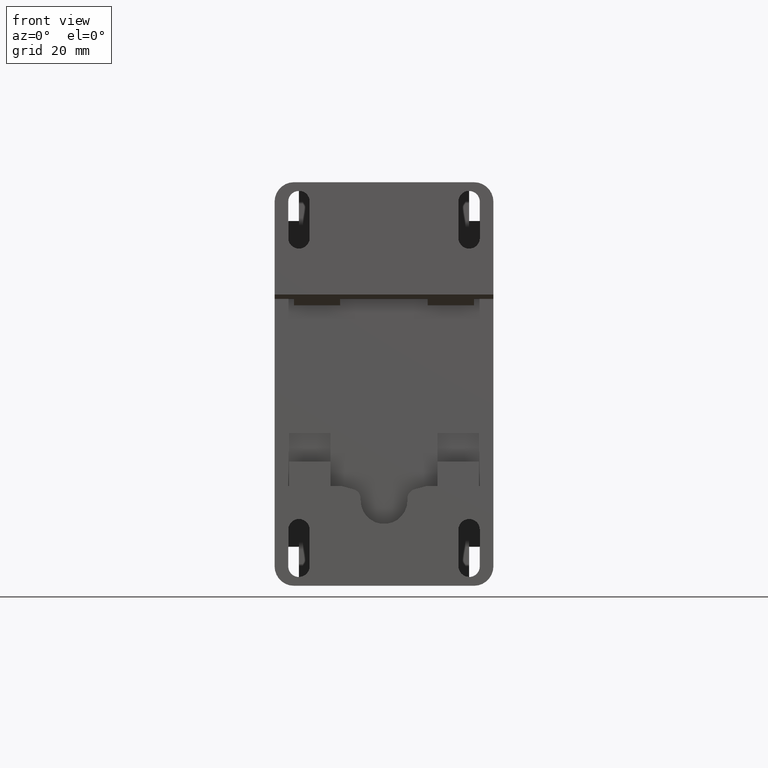
[diagram: clean part render]
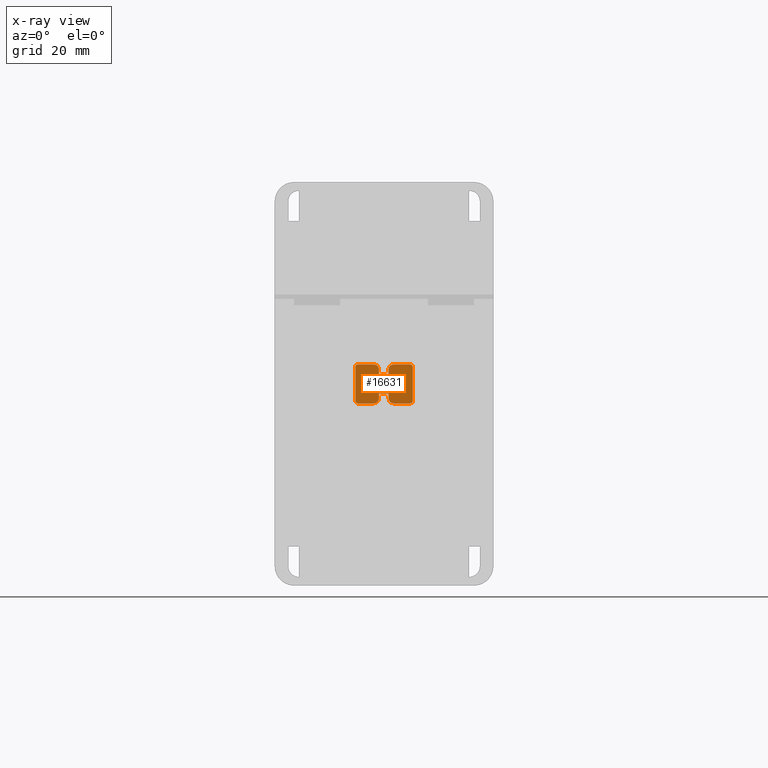
[diagram: x-ray — body ghosted, one internal face saturated and labeled with its STEP entity id]
A machine part, front view, then the same camera in x-ray: the body is ghosted and one INTERNAL B-rep face — a face not visible from any outside direction — is saturated and labeled: STEP entity #16631.
In plain terms, the highlighted planar face has unit normal (-0, 1, 0).
Its self-contained STEP definition (entity closure, byte-faithful):
#1 = EDGE_CURVE ( 'NONE', #4164, #13453, #15109, .T. ) ;
#185 = VERTEX_POINT ( 'NONE', #29516 ) ;
#217 = AXIS2_PLACEMENT_3D ( 'NONE', #1769, #26879, #7391 ) ;
#283 = VECTOR ( 'NONE', #25731, 39.37007874015748143 ) ;
#403 = LINE ( 'NONE', #24613, #12937 ) ;
#469 = LINE ( 'NONE', #30631, #3771 ) ;
#897 = VERTEX_POINT ( 'NONE', #8086 ) ;
#961 = EDGE_CURVE ( 'NONE', #3439, #897, #10978, .T. ) ;
#995 = VECTOR ( 'NONE', #27521, 39.37007874015748143 ) ;
#1147 = DIRECTION ( 'NONE',  ( 1.000000000000000000, 0.000000000000000000, 0.000000000000000000 ) ) ;
#1382 = CARTESIAN_POINT ( 'NONE',  ( 0.2322834645669291376, 1.251968503937008093, -0.1377952755905511861 ) ) ;
#1495 = PLANE ( 'NONE',  #7338 ) ;
#1602 = ORIENTED_EDGE ( 'NONE', *, *, #5576, .F. ) ;
#1686 = CARTESIAN_POINT ( 'NONE',  ( 0.03740157480314960925, 1.251968503937008093, 0.07874015748031495954 ) ) ;
#1769 = CARTESIAN_POINT ( 'NONE',  ( 0.07677165354330708902, 1.251968503937008093, -0.1181102362204724532 ) ) ;
#1783 = DIRECTION ( 'NONE',  ( 0.000000000000000000, 0.000000000000000000, 1.000000000000000000 ) ) ;
#2207 = VERTEX_POINT ( 'NONE', #31108 ) ;
#2614 = ORIENTED_EDGE ( 'NONE', *, *, #17056, .F. ) ;
#2628 = VECTOR ( 'NONE', #1783, 39.37007874015748143 ) ;
#2693 = DIRECTION ( 'NONE',  ( 0.000000000000000000, -1.000000000000000000, 0.000000000000000000 ) ) ;
#2944 = LINE ( 'NONE', #22101, #995 ) ;
#3117 = CARTESIAN_POINT ( 'NONE',  ( 0.03740157480314960925, 1.251968503937008093, -0.07874015748031495954 ) ) ;
#3439 = VERTEX_POINT ( 'NONE', #15922 ) ;
#3771 = VECTOR ( 'NONE', #16737, 39.37007874015748143 ) ;
#4157 = CARTESIAN_POINT ( 'NONE',  ( 0.2125984251968504046, 1.251968503937008093, 0.1377952755905511861 ) ) ;
#4164 = VERTEX_POINT ( 'NONE', #31373 ) ;
#4189 = CARTESIAN_POINT ( 'NONE',  ( 0.07677165354330708902, 1.251968503937008093, -0.1574803149606299191 ) ) ;
#4336 = CIRCLE ( 'NONE', #7804, 0.01968503937007873988 ) ;
#4458 = DIRECTION ( 'NONE',  ( 0.000000000000000000, 0.000000000000000000, 1.000000000000000000 ) ) ;
#4560 = ORIENTED_EDGE ( 'NONE', *, *, #1, .T. ) ;
#4664 = EDGE_CURVE ( 'NONE', #11172, #22011, #8688, .T. ) ;
#4980 = CARTESIAN_POINT ( 'NONE',  ( -0.2322834645669291376, 1.251968503937008093, -0.1574803149606299191 ) ) ;
#5048 = DIRECTION ( 'NONE',  ( 0.000000000000000000, -1.000000000000000000, 0.000000000000000000 ) ) ;
#5311 = EDGE_CURVE ( 'NONE', #2207, #185, #29714, .T. ) ;
#5405 = CARTESIAN_POINT ( 'NONE',  ( -0.08070866141732284393, 1.251968503937008093, -0.1181102362204724532 ) ) ;
#5576 = EDGE_CURVE ( 'NONE', #8663, #30420, #20680, .T. ) ;
#5665 = DIRECTION ( 'NONE',  ( 0.000000000000000000, 0.000000000000000000, 1.000000000000000000 ) ) ;
#5830 = LINE ( 'NONE', #3117, #30268 ) ;
#5998 = DIRECTION ( 'NONE',  ( 0.000000000000000000, 0.000000000000000000, 1.000000000000000000 ) ) ;
#6522 = VECTOR ( 'NONE', #14948, 39.37007874015748143 ) ;
#6802 = CARTESIAN_POINT ( 'NONE',  ( 0.8228346456692913202, 1.251968503937008093, -0.1574803149606299191 ) ) ;
#7338 = AXIS2_PLACEMENT_3D ( 'NONE', #12545, #20480, #20996 ) ;
#7391 = DIRECTION ( 'NONE',  ( 0.000000000000000000, 0.000000000000000000, 1.000000000000000000 ) ) ;
#7401 = DIRECTION ( 'NONE',  ( 0.000000000000000000, -1.000000000000000000, 0.000000000000000000 ) ) ;
#7804 = AXIS2_PLACEMENT_3D ( 'NONE', #26696, #7401, #30115 ) ;
#7875 = EDGE_CURVE ( 'NONE', #30582, #25753, #33311, .T. ) ;
#8086 = CARTESIAN_POINT ( 'NONE',  ( 0.07677165354330708902, 1.251968503937008093, 0.1574803149606299191 ) ) ;
#8663 = VERTEX_POINT ( 'NONE', #17423 ) ;
#8688 = LINE ( 'NONE', #20411, #15829 ) ;
#8936 = ORIENTED_EDGE ( 'NONE', *, *, #12296, .F. ) ;
#9367 = ORIENTED_EDGE ( 'NONE', *, *, #5311, .T. ) ;
#9629 = CIRCLE ( 'NONE', #14240, 0.03937007874015747977 ) ;
#10978 = LINE ( 'NONE', #30469, #34609 ) ;
#11003 = DIRECTION ( 'NONE',  ( 0.000000000000000000, 0.000000000000000000, 1.000000000000000000 ) ) ;
#11172 = VERTEX_POINT ( 'NONE', #26744 ) ;
#11182 = AXIS2_PLACEMENT_3D ( 'NONE', #5405, #2693, #19327 ) ;
#11991 = CARTESIAN_POINT ( 'NONE',  ( 0.07677165354330708902, 1.251968503937008093, 0.1181102362204724532 ) ) ;
#12296 = EDGE_CURVE ( 'NONE', #30582, #8663, #32389, .T. ) ;
#12431 = ORIENTED_EDGE ( 'NONE', *, *, #31826, .F. ) ;
#12495 = CARTESIAN_POINT ( 'NONE',  ( 0.2125984253409452795, 1.251968503937008093, -0.1574803149606299191 ) ) ;
#12501 = CARTESIAN_POINT ( 'NONE',  ( 0.03740157480314960925, 1.251968503937008093, 0.1574803149606299191 ) ) ;
#12545 = CARTESIAN_POINT ( 'NONE',  ( -0.09645669291338582196, 1.251968503937008093, 0.5787401574803149318 ) ) ;
#12908 = EDGE_CURVE ( 'NONE', #19988, #16627, #25620, .T. ) ;
#12937 = VECTOR ( 'NONE', #13609, 39.37007874015748143 ) ;
#12971 = VERTEX_POINT ( 'NONE', #18767 ) ;
#13453 = VERTEX_POINT ( 'NONE', #15984 ) ;
#13609 = DIRECTION ( 'NONE',  ( -1.000000000000000000, 0.000000000000000000, 0.000000000000000000 ) ) ;
#13981 = VECTOR ( 'NONE', #11003, 39.37007874015748143 ) ;
#14240 = AXIS2_PLACEMENT_3D ( 'NONE', #11991, #23328, #5998 ) ;
#14252 = VERTEX_POINT ( 'NONE', #33744 ) ;
#14420 = ORIENTED_EDGE ( 'NONE', *, *, #4664, .F. ) ;
#14594 = ORIENTED_EDGE ( 'NONE', *, *, #19267, .T. ) ;
#14948 = DIRECTION ( 'NONE',  ( 1.000000000000000000, 0.000000000000000000, 0.000000000000000000 ) ) ;
#15107 = CARTESIAN_POINT ( 'NONE',  ( 0.03740157480314960925, 1.251968503937008093, 0.1181102362204724532 ) ) ;
#15109 = LINE ( 'NONE', #6802, #6522 ) ;
#15197 = DIRECTION ( 'NONE',  ( 0.000000000000000000, -1.000000000000000000, 0.000000000000000000 ) ) ;
#15382 = LINE ( 'NONE', #12501, #2628 ) ;
#15428 = FACE_OUTER_BOUND ( 'NONE', #33531, .T. ) ;
#15829 = VECTOR ( 'NONE', #31431, 39.37007874015748143 ) ;
#15922 = CARTESIAN_POINT ( 'NONE',  ( 0.2125984251968504046, 1.251968503937008093, 0.1574803149606299191 ) ) ;
#15984 = CARTESIAN_POINT ( 'NONE',  ( -0.08070866141732284393, 1.251968503937008093, -0.1574803149606299191 ) ) ;
#16028 = ORIENTED_EDGE ( 'NONE', *, *, #12908, .T. ) ;
#16237 = CARTESIAN_POINT ( 'NONE',  ( -0.2125984251968504046, 1.251968503937008093, 0.1377952755905511861 ) ) ;
#16325 = EDGE_CURVE ( 'NONE', #16627, #24365, #2944, .T. ) ;
#16627 = VERTEX_POINT ( 'NONE', #4189 ) ;
#16631 = ADVANCED_FACE ( 'NONE', ( #15428 ), #1495, .F. ) ;
#16737 = DIRECTION ( 'NONE',  ( -1.000000000000000000, 0.000000000000000000, 0.000000000000000000 ) ) ;
#17056 = EDGE_CURVE ( 'NONE', #30420, #25696, #15382, .T. ) ;
#17059 = ORIENTED_EDGE ( 'NONE', *, *, #7875, .T. ) ;
#17150 = EDGE_CURVE ( 'NONE', #12971, #2207, #21109, .T. ) ;
#17243 = EDGE_CURVE ( 'NONE', #21368, #14252, #35732, .T. ) ;
#17423 = CARTESIAN_POINT ( 'NONE',  ( -0.04133858267716535029, 1.251968503937008093, 0.07874015748031495954 ) ) ;
#17895 = ORIENTED_EDGE ( 'NONE', *, *, #28771, .T. ) ;
#18062 = CARTESIAN_POINT ( 'NONE',  ( -0.04133858267716535029, 1.251968503937008093, -0.1181102362204724532 ) ) ;
#18767 = CARTESIAN_POINT ( 'NONE',  ( -0.2125984253409449187, 1.251968503937008093, 0.1574803149606299191 ) ) ;
#18783 = DIRECTION ( 'NONE',  ( 0.000000000000000000, 0.000000000000000000, 1.000000000000000000 ) ) ;
#18822 = AXIS2_PLACEMENT_3D ( 'NONE', #16237, #5048, #18783 ) ;
#19267 = EDGE_CURVE ( 'NONE', #25753, #12971, #403, .T. ) ;
#19327 = DIRECTION ( 'NONE',  ( 0.000000000000000000, 0.000000000000000000, 1.000000000000000000 ) ) ;
#19736 = CARTESIAN_POINT ( 'NONE',  ( -0.04133858267716535029, 1.251968503937008093, 0.1181102362253543397 ) ) ;
#19854 = AXIS2_PLACEMENT_3D ( 'NONE', #31914, #29199, #4458 ) ;
#19988 = VERTEX_POINT ( 'NONE', #29038 ) ;
#20411 = CARTESIAN_POINT ( 'NONE',  ( -0.04133858267716535029, 1.251968503937008093, -0.1574803149606299191 ) ) ;
#20480 = DIRECTION ( 'NONE',  ( -0.000000000000000000, 1.000000000000000000, 0.000000000000000000 ) ) ;
#20680 = LINE ( 'NONE', #1686, #27234 ) ;
#20996 = DIRECTION ( 'NONE',  ( 1.000000000000000000, 0.000000000000000000, 0.000000000000000000 ) ) ;
#21109 = CIRCLE ( 'NONE', #18822, 0.01968503937007873988 ) ;
#21368 = VERTEX_POINT ( 'NONE', #1382 ) ;
#21429 = EDGE_CURVE ( 'NONE', #185, #4164, #21578, .T. ) ;
#21578 = CIRCLE ( 'NONE', #19854, 0.01968503937007873988 ) ;
#21664 = CARTESIAN_POINT ( 'NONE',  ( 0.2322834645669291376, 1.251968503937008093, 0.1574803149606299191 ) ) ;
#21805 = ORIENTED_EDGE ( 'NONE', *, *, #33843, .F. ) ;
#22011 = VERTEX_POINT ( 'NONE', #18062 ) ;
#22101 = CARTESIAN_POINT ( 'NONE',  ( 0.8228346456692913202, 1.251968503937008093, -0.1574803149606299191 ) ) ;
#22166 = ORIENTED_EDGE ( 'NONE', *, *, #17150, .T. ) ;
#23194 = CARTESIAN_POINT ( 'NONE',  ( -0.08070866141732284393, 1.251968503937008093, 0.1181102362204724532 ) ) ;
#23328 = DIRECTION ( 'NONE',  ( 0.000000000000000000, -1.000000000000000000, 0.000000000000000000 ) ) ;
#23417 = CARTESIAN_POINT ( 'NONE',  ( 0.03740157480314960925, 1.251968503937008093, 0.07874015748031495954 ) ) ;
#23835 = DIRECTION ( 'NONE',  ( 1.734723475976807094E-15, 0.000000000000000000, 1.000000000000000000 ) ) ;
#23943 = CIRCLE ( 'NONE', #11182, 0.03937007874015747977 ) ;
#24122 = ORIENTED_EDGE ( 'NONE', *, *, #961, .T. ) ;
#24365 = VERTEX_POINT ( 'NONE', #12495 ) ;
#24613 = CARTESIAN_POINT ( 'NONE',  ( -0.8228346456692913202, 1.251968503937008093, 0.1574803149606299191 ) ) ;
#25620 = CIRCLE ( 'NONE', #217, 0.03937007874015747977 ) ;
#25696 = VERTEX_POINT ( 'NONE', #15107 ) ;
#25731 = DIRECTION ( 'NONE',  ( 0.000000000000000000, 0.000000000000000000, -1.000000000000000000 ) ) ;
#25753 = VERTEX_POINT ( 'NONE', #32939 ) ;
#25889 = ORIENTED_EDGE ( 'NONE', *, *, #27445, .T. ) ;
#26135 = ORIENTED_EDGE ( 'NONE', *, *, #32068, .T. ) ;
#26233 = AXIS2_PLACEMENT_3D ( 'NONE', #4157, #15197, #23835 ) ;
#26583 = CARTESIAN_POINT ( 'NONE',  ( 0.03740157480314960925, 1.251968503937008093, -0.07874015748031495954 ) ) ;
#26696 = CARTESIAN_POINT ( 'NONE',  ( 0.2125984251968504046, 1.251968503937008093, -0.1377952755905511861 ) ) ;
#26744 = CARTESIAN_POINT ( 'NONE',  ( -0.04133858267716535029, 1.251968503937008093, -0.07874015748031495954 ) ) ;
#26879 = DIRECTION ( 'NONE',  ( 0.000000000000000000, -1.000000000000000000, 0.000000000000000000 ) ) ;
#27131 = DIRECTION ( 'NONE',  ( 0.000000000000000000, 0.000000000000000000, -1.000000000000000000 ) ) ;
#27234 = VECTOR ( 'NONE', #1147, 39.37007874015748143 ) ;
#27282 = ORIENTED_EDGE ( 'NONE', *, *, #17243, .T. ) ;
#27445 = EDGE_CURVE ( 'NONE', #13453, #22011, #23943, .T. ) ;
#27521 = DIRECTION ( 'NONE',  ( 1.000000000000000000, 0.000000000000000000, 0.000000000000000000 ) ) ;
#27558 = ORIENTED_EDGE ( 'NONE', *, *, #16325, .T. ) ;
#28771 = EDGE_CURVE ( 'NONE', #14252, #3439, #32577, .T. ) ;
#29038 = CARTESIAN_POINT ( 'NONE',  ( 0.03740157480314960925, 1.251968503937008093, -0.1181102362253543397 ) ) ;
#29199 = DIRECTION ( 'NONE',  ( 0.000000000000000000, -1.000000000000000000, 0.000000000000000000 ) ) ;
#29516 = CARTESIAN_POINT ( 'NONE',  ( -0.2322834645669291376, 1.251968503937008093, -0.1377952757346456725 ) ) ;
#29714 = LINE ( 'NONE', #4980, #283 ) ;
#29861 = CARTESIAN_POINT ( 'NONE',  ( -0.04133858267716535029, 1.251968503937008093, 0.07874015748031495954 ) ) ;
#30115 = DIRECTION ( 'NONE',  ( 0.000000000000000000, 0.000000000000000000, 1.000000000000000000 ) ) ;
#30220 = ORIENTED_EDGE ( 'NONE', *, *, #30718, .T. ) ;
#30268 = VECTOR ( 'NONE', #5665, 39.37007874015748143 ) ;
#30420 = VERTEX_POINT ( 'NONE', #23417 ) ;
#30421 = AXIS2_PLACEMENT_3D ( 'NONE', #23194, #31530, #34213 ) ;
#30469 = CARTESIAN_POINT ( 'NONE',  ( -0.8228346456692913202, 1.251968503937008093, 0.1574803149606299191 ) ) ;
#30582 = VERTEX_POINT ( 'NONE', #19736 ) ;
#30631 = CARTESIAN_POINT ( 'NONE',  ( -0.04133858267716535029, 1.251968503937008093, -0.07874015748031495954 ) ) ;
#30718 = EDGE_CURVE ( 'NONE', #897, #25696, #9629, .T. ) ;
#31108 = CARTESIAN_POINT ( 'NONE',  ( -0.2322834645669291376, 1.251968503937008093, 0.1377952755905511861 ) ) ;
#31373 = CARTESIAN_POINT ( 'NONE',  ( -0.2125984251968504046, 1.251968503937008093, -0.1574803149606299191 ) ) ;
#31431 = DIRECTION ( 'NONE',  ( 0.000000000000000000, 0.000000000000000000, -1.000000000000000000 ) ) ;
#31530 = DIRECTION ( 'NONE',  ( 0.000000000000000000, -1.000000000000000000, 0.000000000000000000 ) ) ;
#31826 = EDGE_CURVE ( 'NONE', #19988, #34324, #5830, .T. ) ;
#31914 = CARTESIAN_POINT ( 'NONE',  ( -0.2125984251968504046, 1.251968503937008093, -0.1377952755905511861 ) ) ;
#32068 = EDGE_CURVE ( 'NONE', #24365, #21368, #4336, .T. ) ;
#32389 = LINE ( 'NONE', #29861, #34807 ) ;
#32577 = CIRCLE ( 'NONE', #26233, 0.01968503937007873988 ) ;
#32939 = CARTESIAN_POINT ( 'NONE',  ( -0.08070866141732284393, 1.251968503937008093, 0.1574803149606299191 ) ) ;
#33311 = CIRCLE ( 'NONE', #30421, 0.03937007874015747977 ) ;
#33531 = EDGE_LOOP ( 'NONE', ( #30220, #2614, #1602, #8936, #17059, #14594, #22166, #9367, #34725, #4560, #25889, #14420, #21805, #12431, #16028, #27558, #26135, #27282, #17895, #24122 ) ) ;
#33535 = DIRECTION ( 'NONE',  ( -1.000000000000000000, 0.000000000000000000, 0.000000000000000000 ) ) ;
#33744 = CARTESIAN_POINT ( 'NONE',  ( 0.2322834645669291376, 1.251968503937008093, 0.1377952757346456725 ) ) ;
#33843 = EDGE_CURVE ( 'NONE', #34324, #11172, #469, .T. ) ;
#34213 = DIRECTION ( 'NONE',  ( -8.673617379884035472E-16, 0.000000000000000000, 1.000000000000000000 ) ) ;
#34324 = VERTEX_POINT ( 'NONE', #26583 ) ;
#34609 = VECTOR ( 'NONE', #33535, 39.37007874015748143 ) ;
#34725 = ORIENTED_EDGE ( 'NONE', *, *, #21429, .T. ) ;
#34807 = VECTOR ( 'NONE', #27131, 39.37007874015748143 ) ;
#35732 = LINE ( 'NONE', #21664, #13981 ) ;